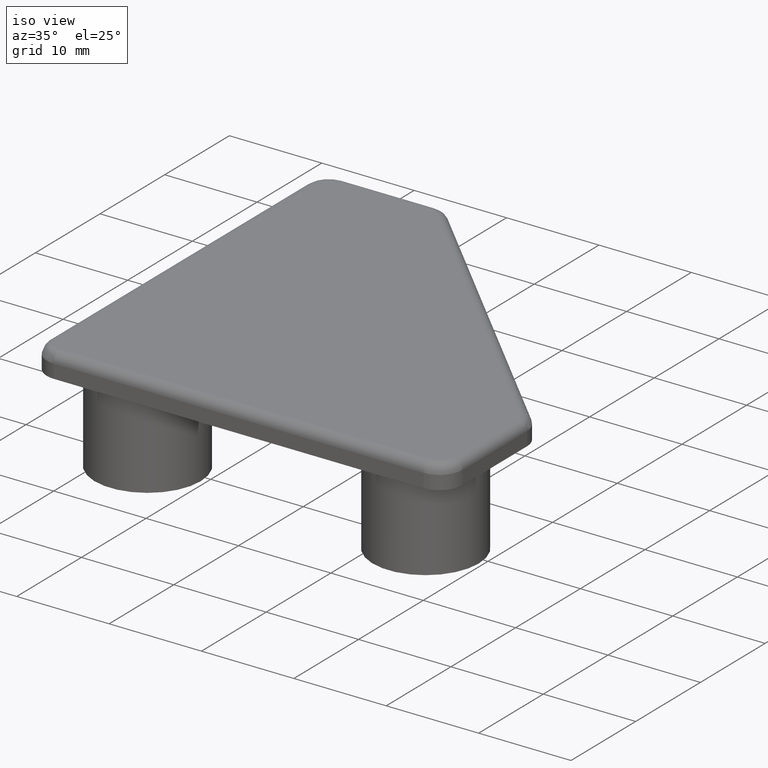
[diagram: clean part render]
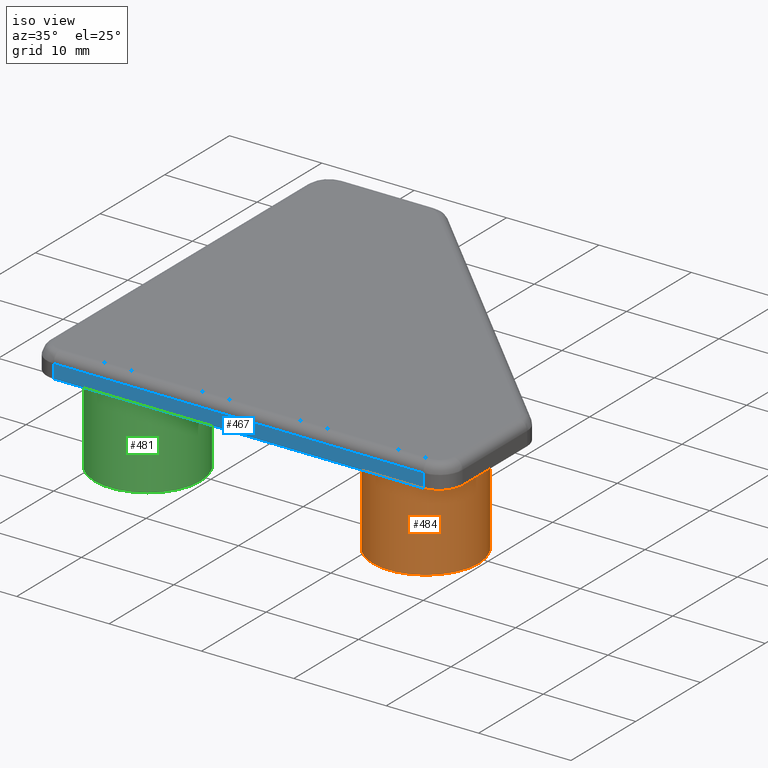
[diagram: same view with three faces highlighted in distinct colors, each labeled with its STEP entity id]
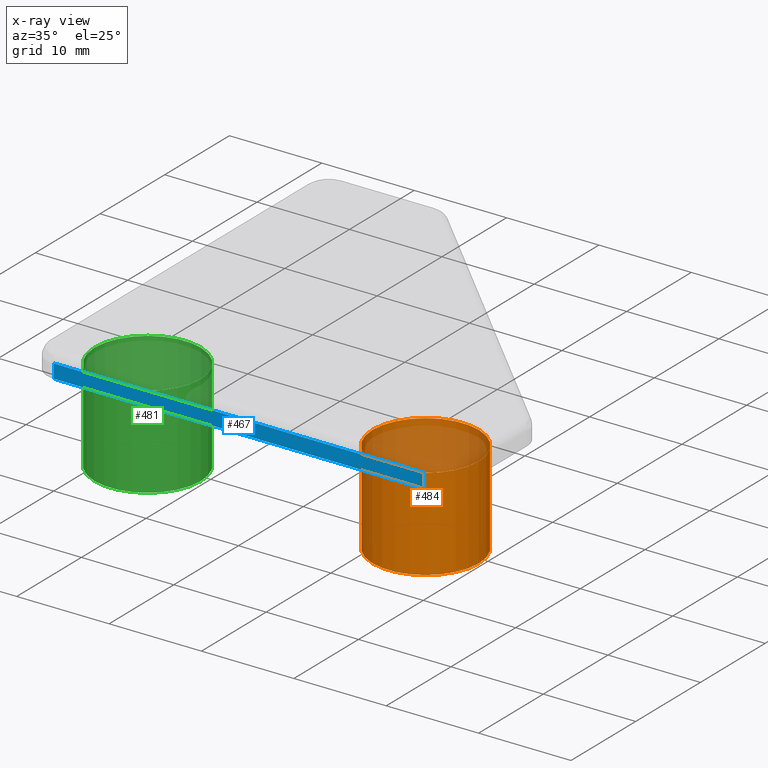
[diagram: x-ray of the same camera — body ghosted, the three highlighted faces saturated]
A machine part, iso view with three faces highlighted in distinct colors.
The next image is the same camera in x-ray (body ghosted, the three faces saturated) — at least one of them is partly hidden behind the body in this view.
Their STEP definitions:

[orange] entity #484 — the highlighted cylindrical surface (bore or boss wall) has radius 5.75 mm, axis along (0, 0, -1).
#32=CYLINDRICAL_SURFACE('',#548,5.749999999977);
#42=FACE_BOUND('',#117,.T.);
#76=FACE_OUTER_BOUND('',#116,.T.);
#116=EDGE_LOOP('',(#431));
#117=EDGE_LOOP('',(#432));
#134=CIRCLE('',#499,5.749999999977);
#161=CIRCLE('',#549,5.749999999977);
#226=VERTEX_POINT('',#741);
#253=VERTEX_POINT('',#1083);
#268=EDGE_CURVE('',#226,#226,#134,.T.);
#315=EDGE_CURVE('',#253,#253,#161,.T.);
#431=ORIENTED_EDGE('',*,*,#268,.T.);
#432=ORIENTED_EDGE('',*,*,#315,.F.);
#484=ADVANCED_FACE('',(#76,#42),#32,.T.);
#499=AXIS2_PLACEMENT_3D('',#742,#579,#580);
#548=AXIS2_PLACEMENT_3D('',#1082,#697,#698);
#549=AXIS2_PLACEMENT_3D('',#1084,#699,#700);
#579=DIRECTION('center_axis',(0.,0.,-1.));
#580=DIRECTION('ref_axis',(1.,0.,0.));
#697=DIRECTION('center_axis',(0.,0.,-1.));
#698=DIRECTION('ref_axis',(1.,0.,0.));
#699=DIRECTION('center_axis',(0.,0.,-1.));
#700=DIRECTION('ref_axis',(1.,0.,0.));
#741=CARTESIAN_POINT('',(9.30002320308762,7.44995599997037,0.));
#742=CARTESIAN_POINT('Origin',(15.0500232030646,7.44995599997037,0.));
#1082=CARTESIAN_POINT('Origin',(15.0500232030646,7.44995599997037,0.));
#1083=CARTESIAN_POINT('',(9.30002320308762,7.44995599997037,-9.99999999995998));
#1084=CARTESIAN_POINT('Origin',(15.0500232030646,7.44995599997037,-9.99999999995998));

[blue] entity #467 — the highlighted planar face has unit normal (0, -1, 0).
#59=FACE_OUTER_BOUND('',#96,.T.);
#96=EDGE_LOOP('',(#369,#370,#371,#372));
#165=LINE('',#721,#190);
#184=LINE('',#799,#209);
#185=LINE('',#803,#210);
#186=LINE('',#804,#211);
#190=VECTOR('',#562,39.9999535935901);
#209=VECTOR('',#637,1.49999999999);
#210=VECTOR('',#642,1.49999999999);
#211=VECTOR('',#643,39.9999535935901);
#215=VERTEX_POINT('',#719);
#216=VERTEX_POINT('',#720);
#247=VERTEX_POINT('',#798);
#248=VERTEX_POINT('',#802);
#257=EDGE_CURVE('',#215,#216,#165,.T.);
#294=EDGE_CURVE('',#215,#247,#184,.T.);
#296=EDGE_CURVE('',#216,#248,#185,.T.);
#297=EDGE_CURVE('',#247,#248,#186,.T.);
#369=ORIENTED_EDGE('',*,*,#296,.T.);
#370=ORIENTED_EDGE('',*,*,#297,.F.);
#371=ORIENTED_EDGE('',*,*,#294,.F.);
#372=ORIENTED_EDGE('',*,*,#257,.T.);
#451=PLANE('',#522);
#467=ADVANCED_FACE('',(#59),#451,.T.);
#522=AXIS2_PLACEMENT_3D('',#801,#640,#641);
#562=DIRECTION('',(1.,0.,0.));
#637=DIRECTION('',(0.,0.,1.));
#640=DIRECTION('center_axis',(0.,-1.,0.));
#641=DIRECTION('ref_axis',(0.,0.,-1.));
#642=DIRECTION('',(0.,0.,1.));
#643=DIRECTION('',(1.,0.,0.));
#719=CARTESIAN_POINT('',(-19.9999768905454,4.99999874E-7,0.));
#720=CARTESIAN_POINT('',(19.9999767030447,4.99999827E-7,0.));
#721=CARTESIAN_POINT('',(-19.9999768905454,4.99999874E-7,0.));
#798=CARTESIAN_POINT('',(-19.9999768905454,4.99999874E-7,1.49999999999));
#799=CARTESIAN_POINT('',(-19.9999768905454,4.99999874E-7,0.));
#801=CARTESIAN_POINT('Origin',(-19.9999768905454,4.99999874E-7,0.));
#802=CARTESIAN_POINT('',(19.9999767030447,4.99999827E-7,1.49999999999));
#803=CARTESIAN_POINT('',(19.9999767030447,4.99999827E-7,0.));
#804=CARTESIAN_POINT('',(-19.9999768905454,4.99999874E-7,1.49999999999));

[green] entity #481 — the highlighted cylindrical surface (bore or boss wall) has radius 5.75 mm, axis along (0, 0, -1).
#30=CYLINDRICAL_SURFACE('',#543,5.749999999977);
#39=FACE_BOUND('',#111,.T.);
#73=FACE_OUTER_BOUND('',#110,.T.);
#110=EDGE_LOOP('',(#425));
#111=EDGE_LOOP('',(#426));
#133=CIRCLE('',#498,5.749999999977);
#159=CIRCLE('',#544,5.749999999977);
#225=VERTEX_POINT('',#739);
#251=VERTEX_POINT('',#1076);
#267=EDGE_CURVE('',#225,#225,#133,.T.);
#313=EDGE_CURVE('',#251,#251,#159,.T.);
#425=ORIENTED_EDGE('',*,*,#267,.T.);
#426=ORIENTED_EDGE('',*,*,#313,.F.);
#481=ADVANCED_FACE('',(#73,#39),#30,.T.);
#498=AXIS2_PLACEMENT_3D('',#740,#577,#578);
#543=AXIS2_PLACEMENT_3D('',#1075,#687,#688);
#544=AXIS2_PLACEMENT_3D('',#1077,#689,#690);
#577=DIRECTION('center_axis',(0.,0.,-1.));
#578=DIRECTION('ref_axis',(1.,0.,0.));
#687=DIRECTION('center_axis',(0.,0.,-1.));
#688=DIRECTION('ref_axis',(1.,0.,0.));
#689=DIRECTION('center_axis',(0.,0.,-1.));
#690=DIRECTION('ref_axis',(1.,0.,0.));
#739=CARTESIAN_POINT('',(-20.7999777967921,7.44995599997037,0.));
#740=CARTESIAN_POINT('Origin',(-15.0499777968151,7.44995599997037,0.));
#1075=CARTESIAN_POINT('Origin',(-15.0499777968151,7.44995599997037,0.));
#1076=CARTESIAN_POINT('',(-20.7999777967921,7.44995599997037,-9.99999999995998));
#1077=CARTESIAN_POINT('Origin',(-15.0499777968151,7.44995599997037,-9.99999999995998));